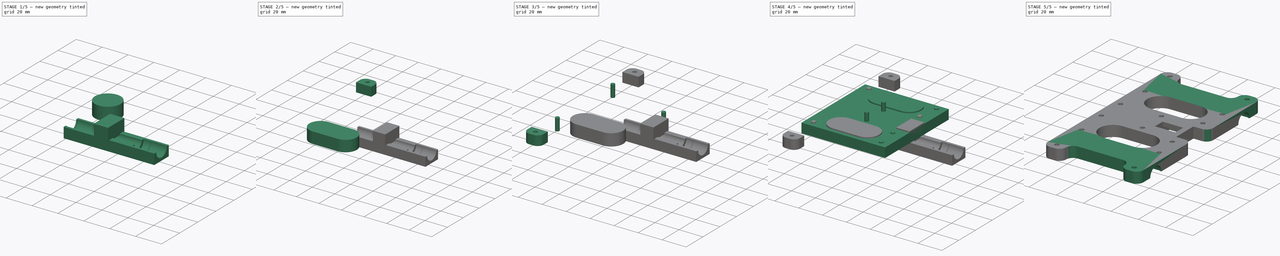
[diagram: build sequence overview — one tinted view per stage of 5, left to right]
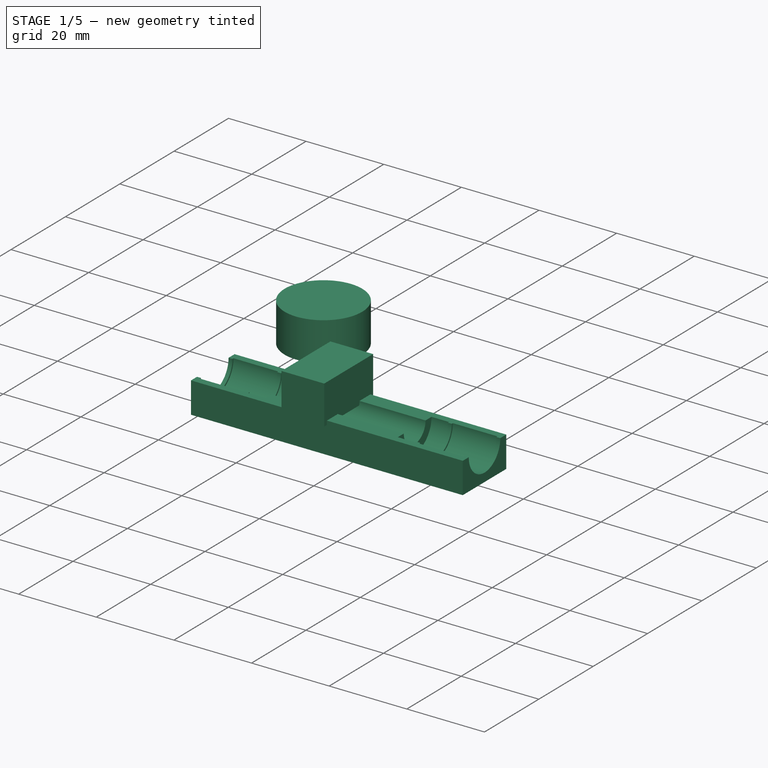
[diagram: stage 1 of 5 — iso view after this stage's code; geometry added in this stage tinted green]
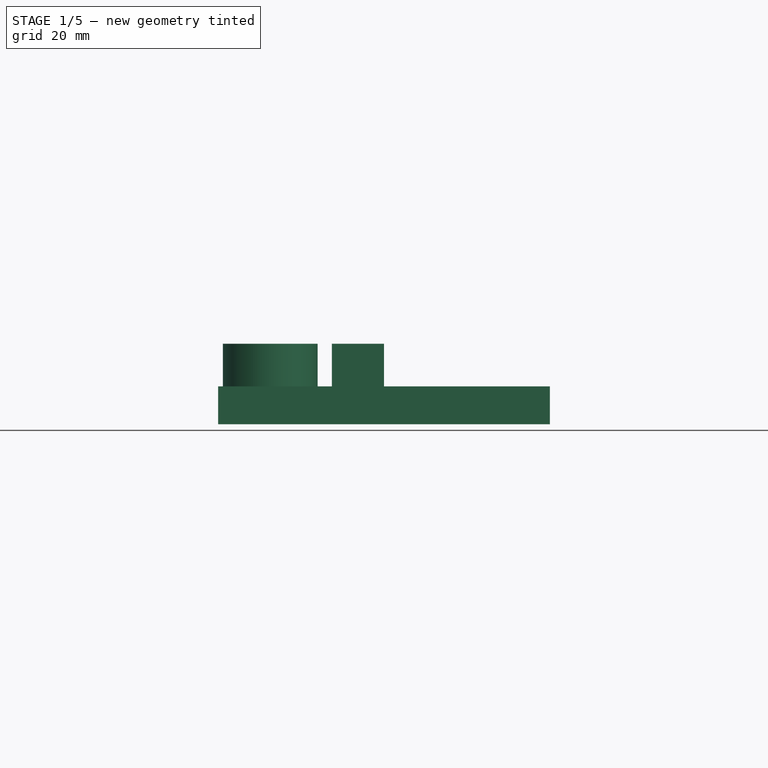
[diagram: stage 1 of 5 — front view after this stage's code; geometry added in this stage tinted green]
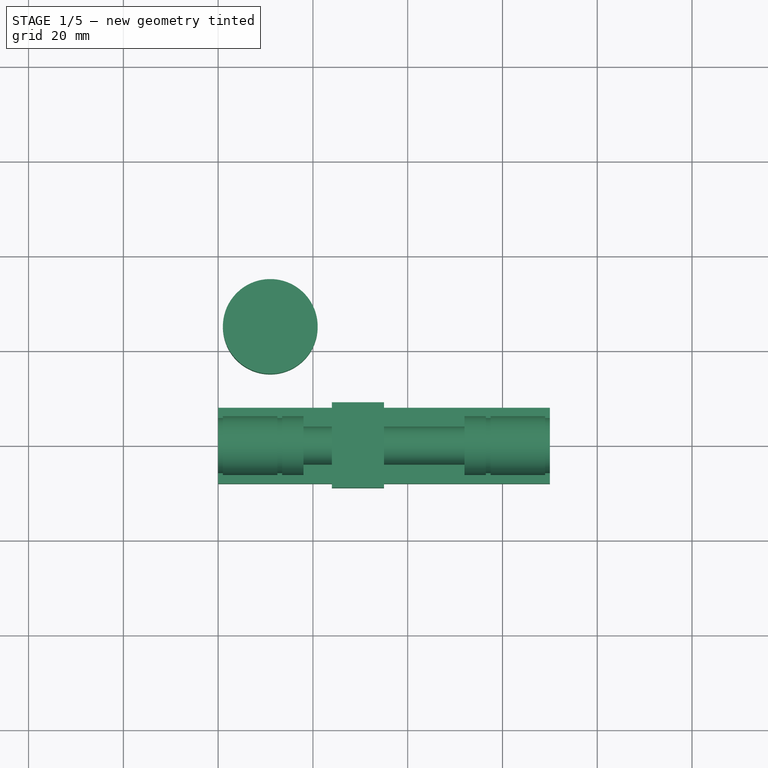
[diagram: stage 1 of 5 — top view after this stage's code; geometry added in this stage tinted green]
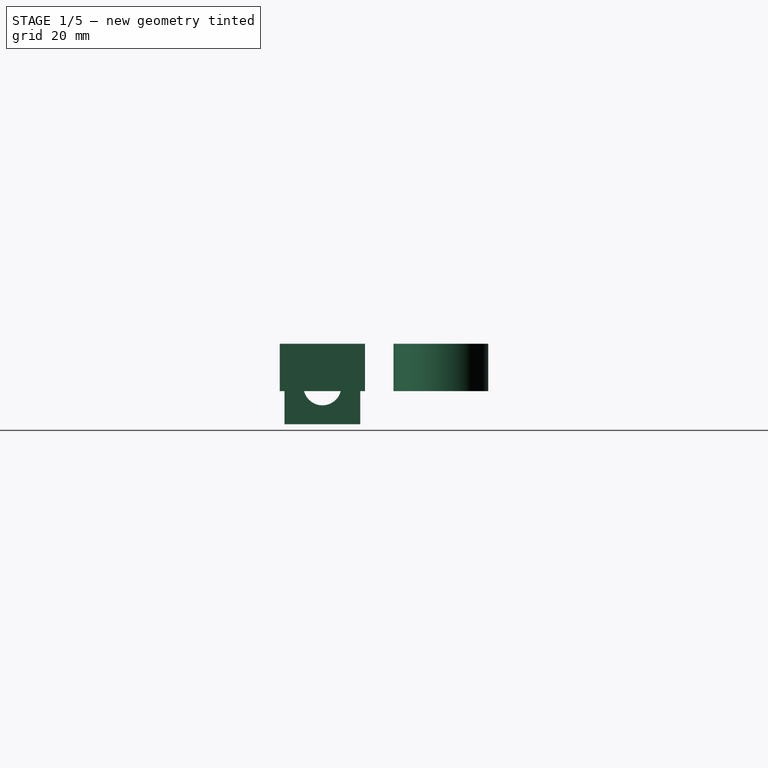
[diagram: stage 1 of 5 — right view after this stage's code; geometry added in this stage tinted green]
FCSTD DOCUMENT  (FreeCAD 0.18R14090 (Git))
Label: BedClamping1_Alt2
License: All rights reserved
LicenseURL: http://en.wikipedia.org/wiki/All_rights_reserved
objects: Part::Mirroring×12, Sketcher::SketchObject×9, PartDesign::Pad×7, Part::Box×7, Part::Cylinder×6, PartDesign::Plane×4, Part::MultiFuse×3, PartDesign::Pocket×2, PartDesign::Body×2, Part::Cut×2, Part::Fillet×2, App::Part×1, Part::FeaturePython×1
note: 66 computed .brp shape members not serialized (recipe doc carries the construction recipe); baked Part::Feature solids carry a one-line shape summary decoded from their .brp

FEATURE [PartDesign::Plane] DatumPlane  label="ClipNotch2Plane"
  AttachmentOffset = pos=(0,0,13.5) rot=(0,0,1;0rad)
  MapMode = 5
  Placement = pos=(13.5,-2e-12,2e-12) rot=(0.57735,0.57735,0.57735;2.0944rad)
  Support = -> [YZ_Plane002]
FEATURE [PartDesign::Plane] DatumPlane001  label="ClipNotch3Plane"
  AttachmentOffset = pos=(0,0,56.5) rot=(0,0,1;0rad)
  MapMode = 5
  Placement = pos=(56.5,-6e-12,6e-12) rot=(0.57735,0.57735,0.57735;2.0944rad)
  Support = -> [YZ_Plane002]
FEATURE [PartDesign::Plane] DatumPlane002  label="ClipNotch4Plane"
  AttachmentOffset = pos=(0,0,70) rot=(0,0,1;0rad)
  MapMode = 5
  Placement = pos=(70,-8e-12,8e-12) rot=(0.57735,0.57735,0.57735;2.0944rad)
  Support = -> [YZ_Plane002]
FEATURE [Sketcher::SketchObject] Sketch002  label="ClipSketch"
  MapMode = 5
  Placement = pos=(0,0,0) rot=(0.57735,0.57735,0.57735;2.0944rad)
  Support = -> [YZ_Plane002]
  sketch-geometry (6):
    g0: LineSegment StartX=-8 StartY=0 StartZ=0 EndX=-8 EndY=-8 EndZ=0
    g1: LineSegment StartX=8 StartY=0 StartZ=0 EndX=8 EndY=-8 EndZ=0
    g2: LineSegment StartX=-8 StartY=-8 StartZ=0 EndX=8 EndY=-8 EndZ=0
    g3: ArcOfCircle CenterX=0 CenterY=0 CenterZ=0 NormalX=0 NormalY=0 NormalZ=1 AngleXU=0 Radius=6.2 StartAngle=3.14159 EndAngle=6.28319
    g4: LineSegment StartX=-8 StartY=0 StartZ=0 EndX=-6.2 EndY=0 EndZ=0
    g5: LineSegment StartX=6.2 StartY=0 StartZ=0 EndX=8 EndY=0 EndZ=0
  constraints (17):
    c: Symmetric(g0,g1,g-2)
    c: PointOnObject(g0,g-1)
    c: Coincident(g2,g0)
    c: Coincident(g2,g1)
    c: Distance(g1) = 8
    c: PointOnObject(g3,g-1)
    c: PointOnObject(g3,g-1)
    c: Radius(g3) = 6.2
    c: Coincident(g3,g-1)
    c: Distance(g2) = 16
    c: Horizontal(g2)
    c: Vertical(g0)
    c: Coincident(g4,g0)
    c: Coincident(g4,g3)
    c: Coincident(g5,g3)
    c: Coincident(g5,g1)
    c: Vertical(g1)
FEATURE [PartDesign::Pad] Pad009  label="ClipPad"
  Length = 70
  Length2 = 100
  Placement = pos=(0,0,0) rot=(0.57735,0.57735,0.57735;2.0944rad)
  Profile = -> Sketch002
  Type = 0
FEATURE [Sketcher::SketchObject] Sketch001  label="ClipNotch1Sketch"
  ExternalGeometry = -> [Sketch002]
  MapMode = 5
  Placement = pos=(0,0,0) rot=(0.57735,0.57735,0.57735;2.0944rad)
  Support = -> [YZ_Plane002]
  sketch-geometry (4):
    g0: ArcOfCircle CenterX=0 CenterY=0 CenterZ=0 NormalX=0 NormalY=0 NormalZ=1 AngleXU=0 Radius=6.2 StartAngle=3.14159 EndAngle=6.28319
    g1: ArcOfCircle CenterX=0 CenterY=0 CenterZ=0 NormalX=0 NormalY=0 NormalZ=1 AngleXU=0 Radius=5.8 StartAngle=3.14159 EndAngle=6.28319
    g2: LineSegment StartX=-6.2 StartY=0 StartZ=0 EndX=-5.8 EndY=0 EndZ=0
    g3: LineSegment StartX=5.8 StartY=0 StartZ=0 EndX=6.2 EndY=0 EndZ=0
  constraints (11):
    c: Coincident(g0,g-1)
    c: Coincident(g0,g-3)
    c: PointOnObject(g0,g-1)
    c: Coincident(g1,g0)
    c: Coincident(g2,g0)
    c: Coincident(g2,g1)
    c: Horizontal(g2)
    c: Coincident(g3,g1)
    c: Coincident(g3,g0)
    c: Horizontal(g3)
    c: Radius(g1) = 5.8
FEATURE [PartDesign::Pad] Pad001  label="ClipNotch1Pad"
  BaseFeature = -> Pad009
  Length = 1
  Length2 = 100
  Placement = pos=(0,0,0) rot=(0.57735,0.57735,0.57735;2.0944rad)
  Profile = -> Sketch001
  Type = 0
FEATURE [Sketcher::SketchObject] Sketch004  label="ClipNotch3Sketch"
  ExternalGeometry = -> [Sketch001]
  MapMode = 5
  Placement = pos=(56.5,-6e-12,6e-12) rot=(0.57735,0.57735,0.57735;2.0944rad)
  Support = -> [DatumPlane001]
  sketch-geometry (4):
    g0: ArcOfCircle CenterX=0 CenterY=0 CenterZ=0 NormalX=0 NormalY=0 NormalZ=1 AngleXU=0 Radius=5.8 StartAngle=3.14159 EndAngle=6.28319
    g1: ArcOfCircle CenterX=0 CenterY=0 CenterZ=0 NormalX=0 NormalY=0 NormalZ=1 AngleXU=0 Radius=6.2 StartAngle=3.14159 EndAngle=6.28319
    g2: LineSegment StartX=-6.2 StartY=0 StartZ=0 EndX=-5.8 EndY=-1e-12 EndZ=0
    g3: LineSegment StartX=5.8 StartY=2e-12 StartZ=0 EndX=6.2 EndY=0 EndZ=0
  constraints (10):
    c: Coincident(g0,g-1)
    c: Coincident(g0,g-3)
    c: Coincident(g0,g-3)
    c: Coincident(g1,g0)
    c: Coincident(g1,g-4)
    c: Coincident(g1,g-4)
    c: Coincident(g2,g1)
    c: Coincident(g2,g0)
    c: Coincident(g3,g0)
    c: Coincident(g3,g1)
FEATURE [Sketcher::SketchObject] Sketch003  label="ClipNotch2Sketch"
  ExternalGeometry = -> [Sketch001]
  MapMode = 5
  Placement = pos=(13.5,-2e-12,2e-12) rot=(0.57735,0.57735,0.57735;2.0944rad)
  Support = -> [DatumPlane]
  sketch-geometry (4):
    g0: ArcOfCircle CenterX=0 CenterY=0 CenterZ=0 NormalX=0 NormalY=0 NormalZ=1 AngleXU=0 Radius=6.2 StartAngle=3.14159 EndAngle=6.28319
    g1: ArcOfCircle CenterX=0 CenterY=0 CenterZ=0 NormalX=0 NormalY=0 NormalZ=1 AngleXU=0 Radius=5.8 StartAngle=3.14159 EndAngle=6.28319
    g2: LineSegment StartX=-6.2 StartY=-1e-12 StartZ=0 EndX=-5.8 EndY=0 EndZ=0
    g3: LineSegment StartX=5.8 StartY=0 StartZ=0 EndX=6.2 EndY=0 EndZ=0
  constraints (10):
    c: Coincident(g0,g-1)
    c: Coincident(g0,g-3)
    c: Coincident(g0,g-3)
    c: Coincident(g1,g0)
    c: Coincident(g1,g-4)
    c: Coincident(g1,g-4)
    c: Coincident(g2,g0)
    c: Coincident(g2,g1)
    c: Coincident(g3,g1)
    c: Coincident(g3,g0)
FEATURE [PartDesign::Pad] Pad010  label="ClipNotch2Pad"
  BaseFeature = -> Pad001
  Length = 1
  Length2 = 100
  Placement = pos=(0,0,0) rot=(0.57735,0.57735,0.57735;2.0944rad)
  Profile = -> Sketch003
  Reversed = true
  Type = 0
FEATURE [PartDesign::Pad] Pad011  label="ClipNotch3Pad"
  BaseFeature = -> Pad010
  Length = 1
  Length2 = 100
  Placement = pos=(0,0,0) rot=(0.57735,0.57735,0.57735;2.0944rad)
  Profile = -> Sketch004
  Type = 0
FEATURE [Sketcher::SketchObject] Sketch005  label="ClipNotch4Sketch"
  ExternalGeometry = -> [Sketch001]
  MapMode = 5
  Placement = pos=(70,-8e-12,8e-12) rot=(0.57735,0.57735,0.57735;2.0944rad)
  Support = -> [DatumPlane002]
  sketch-geometry (4):
    g0: ArcOfCircle CenterX=0 CenterY=0 CenterZ=0 NormalX=0 NormalY=0 NormalZ=1 AngleXU=0 Radius=5.8 StartAngle=3.14159 EndAngle=6.28319
    g1: ArcOfCircle CenterX=0 CenterY=0 CenterZ=0 NormalX=0 NormalY=0 NormalZ=1 AngleXU=0 Radius=6.2 StartAngle=3.14159 EndAngle=6.28319
    g2: LineSegment StartX=-6.2 StartY=0 StartZ=0 EndX=-5.8 EndY=-1e-12 EndZ=0
    g3: LineSegment StartX=5.8 StartY=2e-12 StartZ=0 EndX=6.2 EndY=3e-12 EndZ=0
  constraints (10):
    c: Coincident(g0,g-1)
    c: Coincident(g0,g-3)
    c: Coincident(g0,g-3)
    c: Coincident(g1,g0)
    c: Coincident(g1,g-4)
    c: Coincident(g1,g-4)
    c: Coincident(g2,g1)
    c: Coincident(g2,g0)
    c: Coincident(g3,g0)
    c: Coincident(g3,g1)
FEATURE [PartDesign::Pad] Pad012  label="ClipNotch4Pad"
  BaseFeature = -> Pad011
  Length = 1
  Length2 = 100
  Placement = pos=(0,0,0) rot=(0.57735,0.57735,0.57735;2.0944rad)
  Profile = -> Sketch005
  Reversed = true
  Type = 0
FEATURE [Part::Cylinder] Cylinder005  label="StructuralCutCilinder"
  Angle = 360
  AttacherType = Attacher::AttachEngine3D
  Height = 10
  Placement = pos=(11,25,-1) rot=(0,0,1;0rad)
  Radius = 10
FEATURE [PartDesign::Plane] DatumPlane003  label="ClipStiffenerPlane"
  AttachmentOffset = pos=(0,0,18) rot=(0,0,1;0rad)
  MapMode = 5
  Placement = pos=(18,-2e-12,2e-12) rot=(0.57735,0.57735,0.57735;2.0944rad)
  Support = -> [YZ_Plane002]
FEATURE [Sketcher::SketchObject] Sketch008  label="ClipStiffenerSketch"
  ExternalGeometry = -> [Sketch002]
  MapMode = 5
  Placement = pos=(18,-2e-12,2e-12) rot=(0.57735,0.57735,0.57735;2.0944rad)
  Support = -> [DatumPlane003]
  sketch-geometry (4):
    g0: ArcOfCircle CenterX=0 CenterY=0 CenterZ=0 NormalX=0 NormalY=0 NormalZ=1 AngleXU=0 Radius=6.2 StartAngle=3.14159 EndAngle=6.28319
    g1: ArcOfCircle CenterX=0 CenterY=0 CenterZ=0 NormalX=0 NormalY=0 NormalZ=1 AngleXU=0 Radius=4 StartAngle=3.14159 EndAngle=6.28319
    g2: LineSegment StartX=-4 StartY=0 StartZ=0 EndX=-6.2 EndY=0 EndZ=0
    g3: LineSegment StartX=4 StartY=0 StartZ=0 EndX=6.2 EndY=0 EndZ=0
  constraints (11):
    c: Coincident(g0,g-1)
    c: Coincident(g0,g-3)
    c: Coincident(g0,g-3)
    c: PointOnObject(g1,g-1)
    c: PointOnObject(g1,g-1)
    c: Radius(g1) = 4
    c: Coincident(g2,g1)
    c: Coincident(g2,g0)
    c: Coincident(g3,g1)
    c: Coincident(g3,g0)
    c: Coincident(g1,g0)
FEATURE [PartDesign::Pad] Pad013  label="ClipStiffenerPad"
  BaseFeature = -> Pad012
  Length = 34
  Length2 = 100
  Placement = pos=(0,0,0) rot=(0.57735,0.57735,0.57735;2.0944rad)
  Profile = -> Sketch008
  Type = 0
FEATURE [Part::Box] Box009  label="FrontCutCube"
  AttacherType = Attacher::AttachEngine3D
  Height = 10
  Length = 11
  Placement = pos=(24,-9,-1) rot=(0,0,1;0rad)
  Width = 18
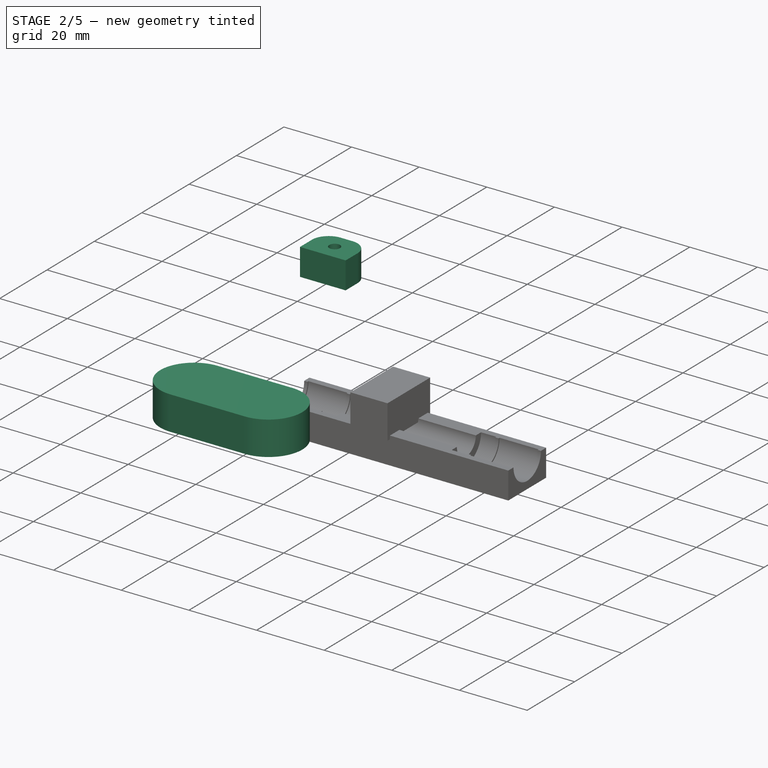
[diagram: stage 2 of 5 — iso view after this stage's code; geometry added in this stage tinted green]
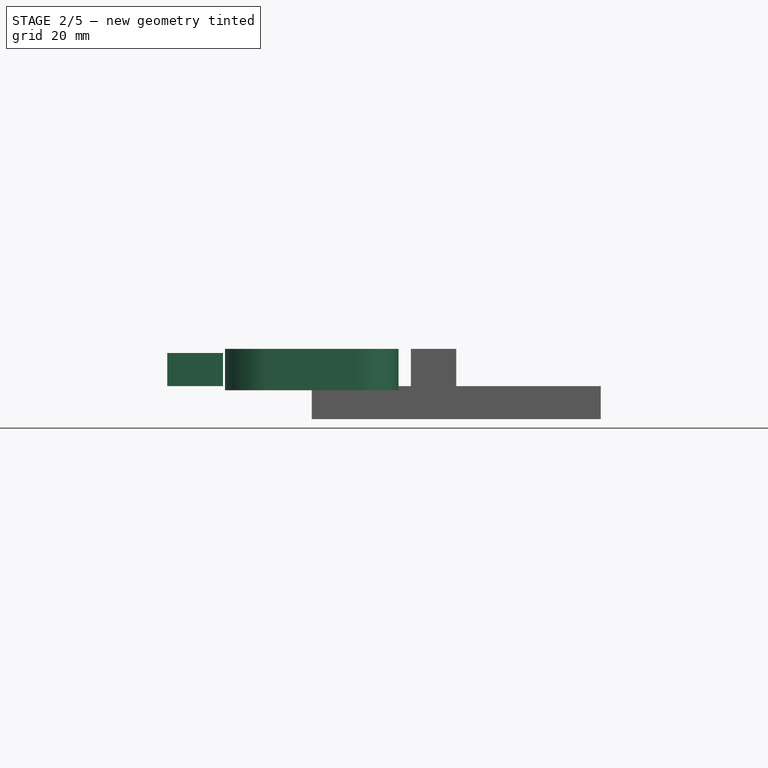
[diagram: stage 2 of 5 — front view after this stage's code; geometry added in this stage tinted green]
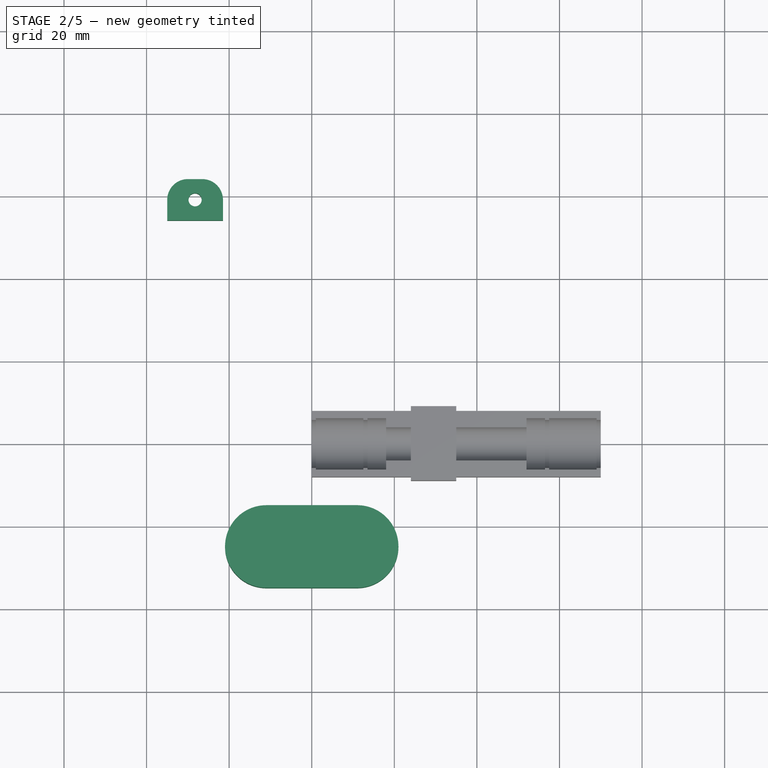
[diagram: stage 2 of 5 — top view after this stage's code; geometry added in this stage tinted green]
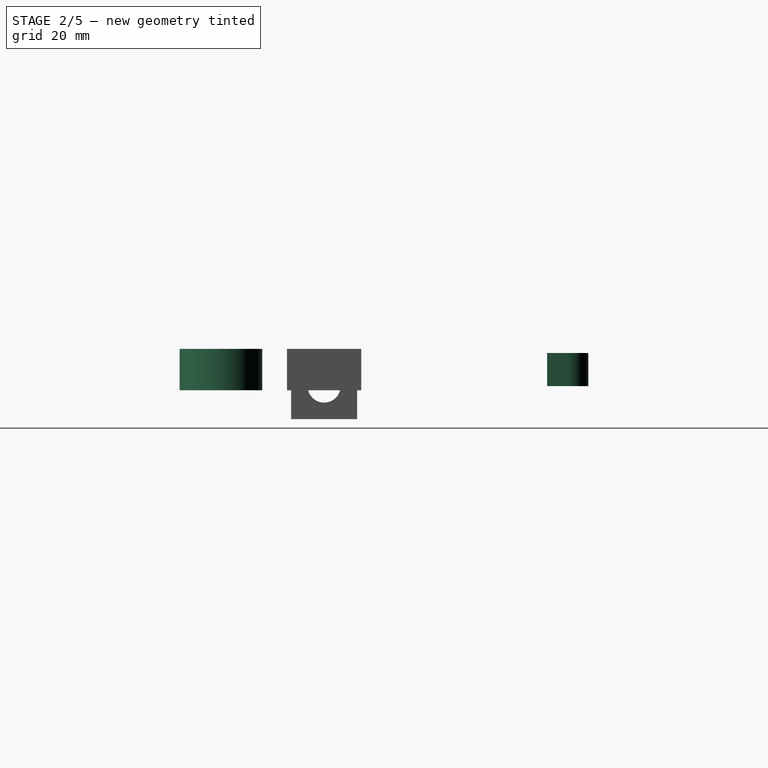
[diagram: stage 2 of 5 — right view after this stage's code; geometry added in this stage tinted green]
FEATURE [Part::Box] Box004  label="SideClipCube"
  AttacherType = Attacher::AttachEngine3D
  Height = 8
  Length = 13.5
  Placement = pos=(21.5,54,0) rot=(0,0,1;0rad)
  Width = 10
FEATURE [Part::Cylinder] Cylinder004  label="SideClipScrewCilinder"
  Angle = 360
  AttacherType = Attacher::AttachEngine3D
  Height = 10
  Placement = pos=(28.25,59,-1) rot=(0,0,1;0rad)
  Radius = 1.6
FEATURE [Part::Cut] Cut001  label="SideClipCut"
  Base = -> Box004
  Tool = -> Cylinder004
FEATURE [Part::Fillet] Fillet  label="SideClipFillet"
  Base = -> Cut001
  Edges = 2 edges r=5: [Edge3,Edge12]
FEATURE [Part::Mirroring] Part__Mirroring009  label="SideClipFillet_Mirror1"
  Base = (0,0,0)
  Normal = (1,0,0)
  Source = -> Fillet
FEATURE [Part::Box] Box005  label="StructuralCutCube"
  AttacherType = Attacher::AttachEngine3D
  Height = 10
  Length = 22
  Placement = pos=(-11,15,-1) rot=(0,0,1;0rad)
  Width = 20
FEATURE [Part::Mirroring] Part__Mirroring010  label="StructuralCutCilinder_Mirror"
  Base = (0,0,0)
  Normal = (1,0,0)
  Source = -> Cylinder005
FEATURE [Part::MultiFuse] Fusion002  label="StructuralCutHelperFusion"
  Shapes = -> [Cylinder005,Part__Mirroring010,Box005]
FEATURE [Part::Mirroring] Part__Mirroring011  label="StructuralCutHelperFusion_Mirror"
  Base = (0,0,0)
  Normal = (0,1,0)
  Source = -> Fusion002
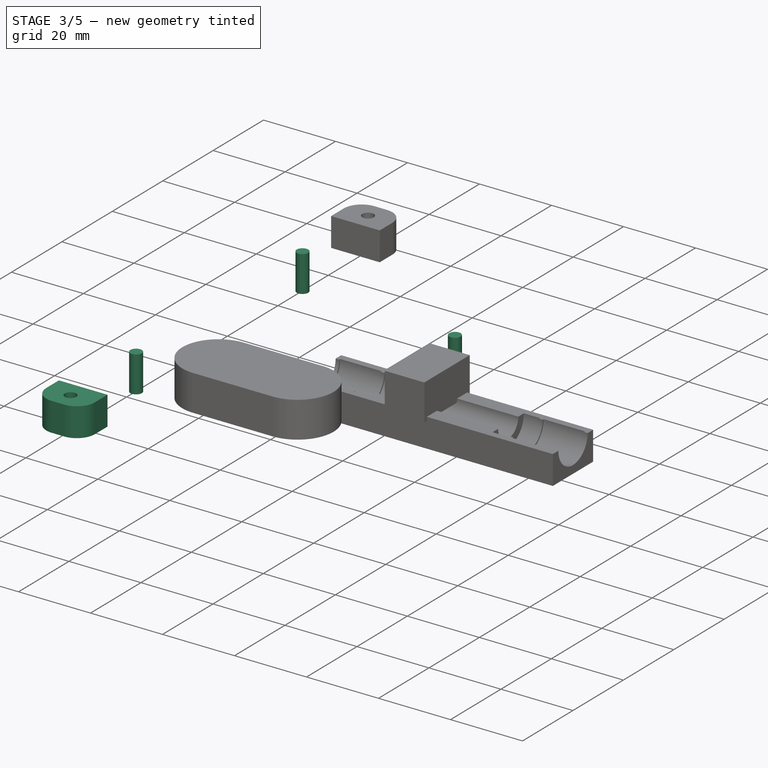
[diagram: stage 3 of 5 — iso view after this stage's code; geometry added in this stage tinted green]
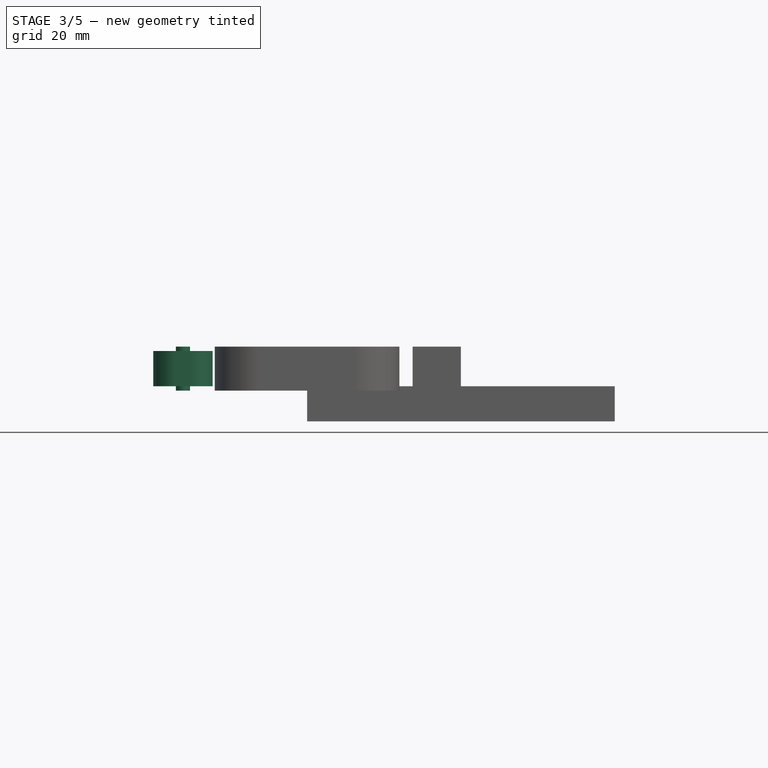
[diagram: stage 3 of 5 — front view after this stage's code; geometry added in this stage tinted green]
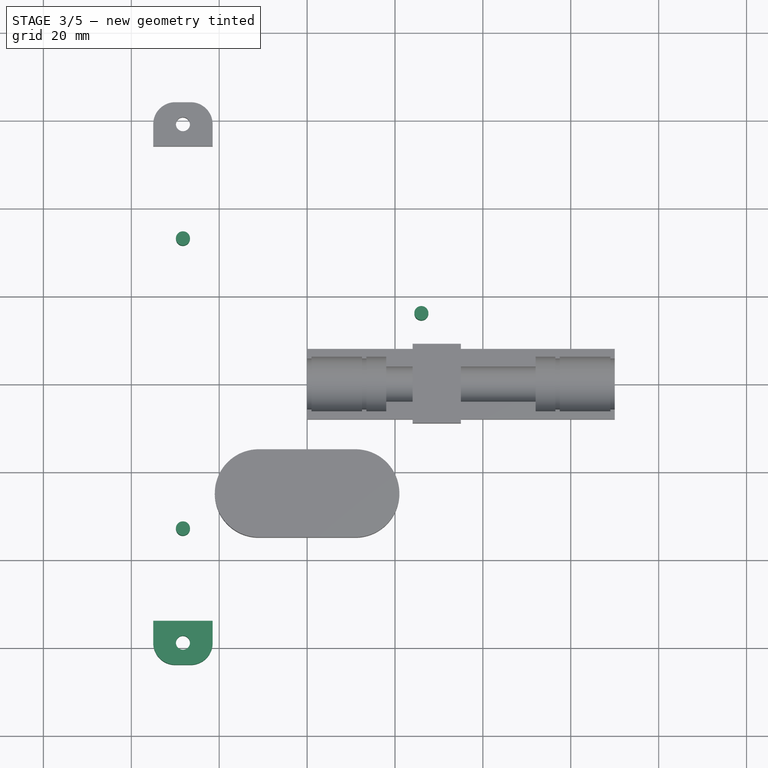
[diagram: stage 3 of 5 — top view after this stage's code; geometry added in this stage tinted green]
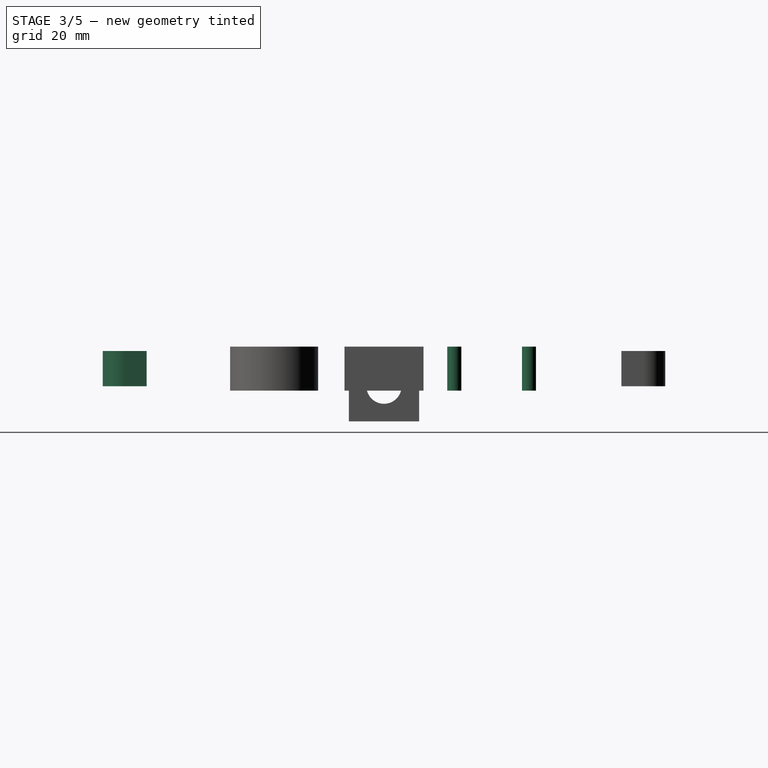
[diagram: stage 3 of 5 — right view after this stage's code; geometry added in this stage tinted green]
FEATURE [Part::Cylinder] Cylinder002  label="ScrewHoleCilinder2"
  Angle = 360
  AttacherType = Attacher::AttachEngine3D
  Height = 10
  Placement = pos=(26,-16,-1) rot=(0,0,1;0rad)
  Radius = 1.6
FEATURE [Part::Mirroring] Part__Mirroring003  label="ScrewHoleCilinder2_Mirror"
  Base = (0,0,0)
  Normal = (0,1,0)
  Source = -> Cylinder002
FEATURE [Part::Cylinder] Cylinder003  label="ScrewHoleCilinder3"
  Angle = 360
  AttacherType = Attacher::AttachEngine3D
  Height = 10
  Placement = pos=(28.25,33,-1) rot=(0,0,1;0rad)
  Radius = 1.6
FEATURE [Part::Mirroring] Part__Mirroring004  label="ScrewHoleCilinder3_Mirror1"
  Base = (0,0,0)
  Normal = (0,1,0)
  Source = -> Cylinder003
FEATURE [Part::Mirroring] Part__Mirroring005  label="ScrewHoleCilinder3_Mirror2"
  Base = (7.15256e-07,-33,4)
  Normal = (1,0,-1.19209e-07)
  Source = -> Part__Mirroring004
FEATURE [Part::Mirroring] Part__Mirroring006  label="ScrewHoleCilinder3_Mirror3"
  Base = (7.15256e-07,33,4)
  Normal = (1,0,-1.19209e-07)
  Source = -> Cylinder003
FEATURE [Part::Mirroring] Part__Mirroring007  label="SideClipFillet_Mirror3"
  Base = (0,0,0)
  Normal = (0,1,0)
  Source = -> Fillet
FEATURE [Part::Mirroring] Part__Mirroring008  label="SideClipFillet_Mirror2"
  Base = (0,0,0)
  Normal = (1,0,0)
  Source = -> Part__Mirroring007
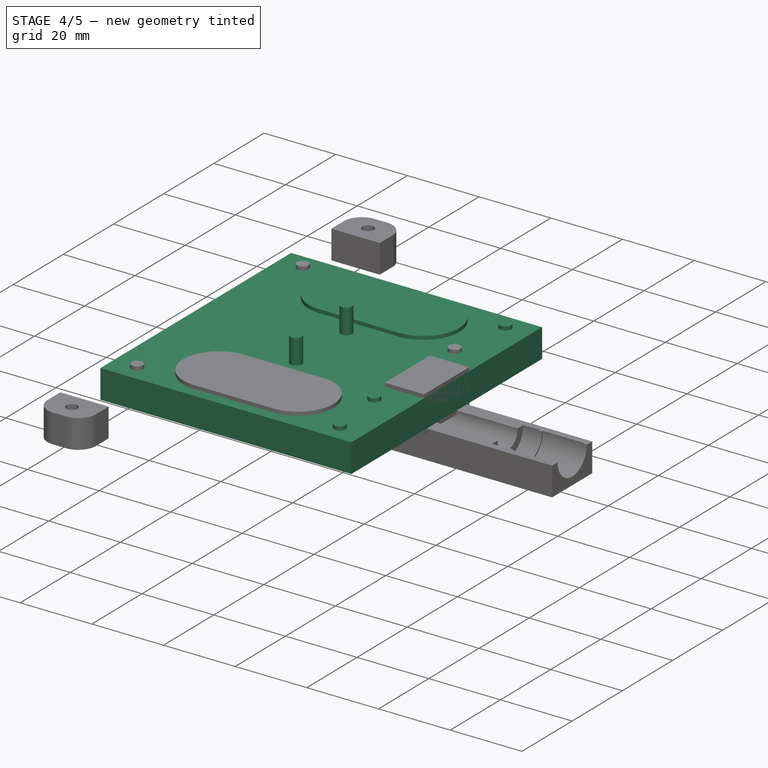
[diagram: stage 4 of 5 — iso view after this stage's code; geometry added in this stage tinted green]
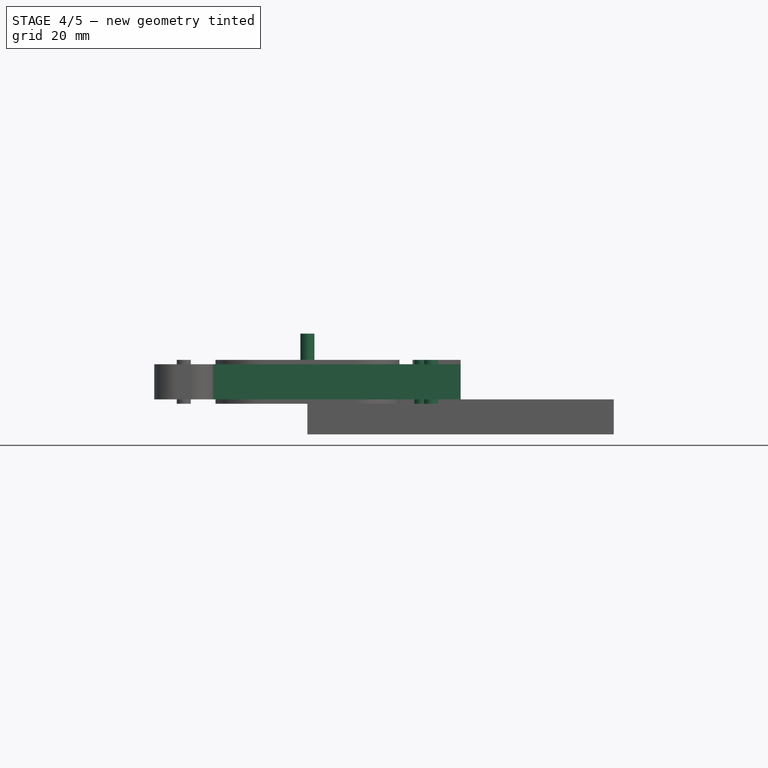
[diagram: stage 4 of 5 — front view after this stage's code; geometry added in this stage tinted green]
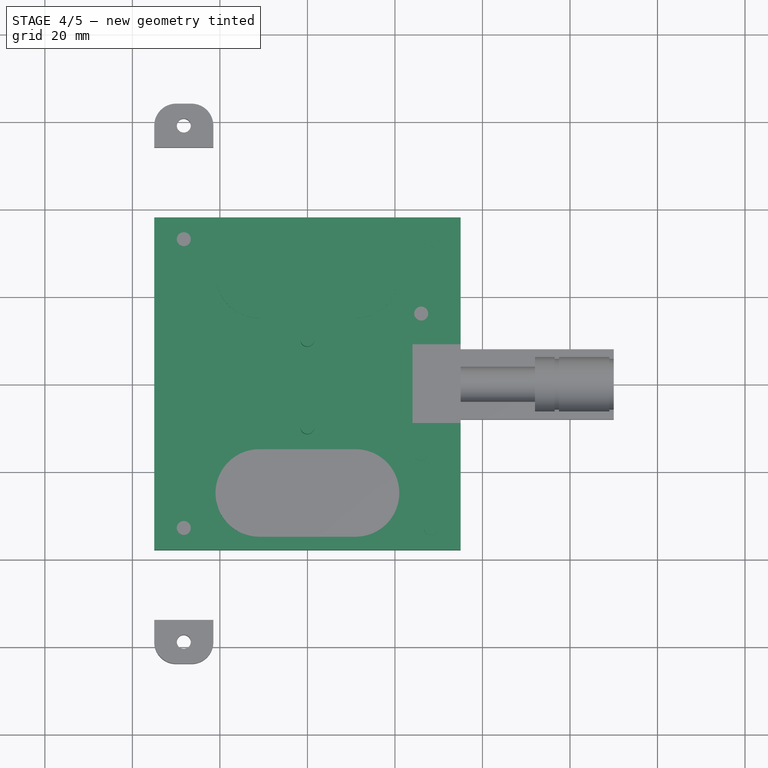
[diagram: stage 4 of 5 — top view after this stage's code; geometry added in this stage tinted green]
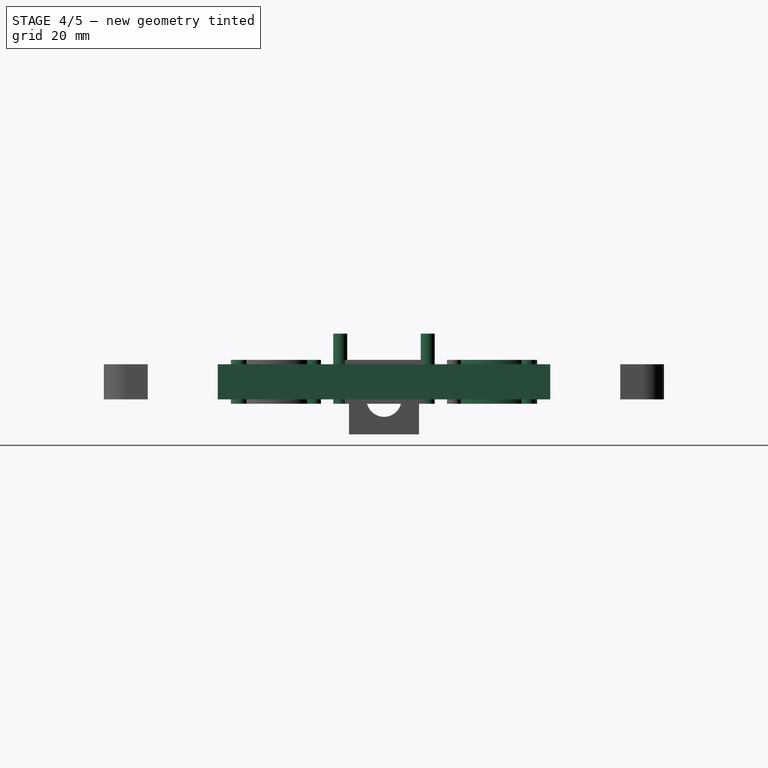
[diagram: stage 4 of 5 — right view after this stage's code; geometry added in this stage tinted green]
FEATURE [Part::Box] Box  label="BedBaseCube"
  AttacherType = Attacher::AttachEngine3D
  Height = 8
  Length = 70
  Placement = pos=(-35,-38,0) rot=(0,0,1;0rad)
  Width = 76
FEATURE [Part::Box] Box001  label="BeltClipCube"
  AttacherType = Attacher::AttachEngine3D
  Height = 2
  Length = 70
  Placement = pos=(-35,-3.5,0) rot=(0,0,1;0rad)
  Width = 7
FEATURE [Part::Box] Box002  label="BeltTensionerRailCube1"
  AttacherType = Attacher::AttachEngine3D
  Height = 5
  Length = 15
  Placement = pos=(5,-11,0) rot=(0,0,1;0rad)
  Width = 22
FEATURE [Part::Box] Box003  label="BeltTensionerRailCube2"
  AttacherType = Attacher::AttachEngine3D
  Height = 3
  Length = 15
  Placement = pos=(5,-4,5) rot=(0,0,1;0rad)
  Width = 8
FEATURE [PartDesign::Body] Body002  label="BedTensionerBody"
  Group = -> [Sketch,Pad,Sketch006,Pocket,Sketch007,Pocket001]
  Origin = -> Origin003
  Placement = pos=(0,0,8) rot=(0,0,1;0rad)
  Tip = -> Pocket001
FEATURE [Part::Cylinder] Cylinder  label="BeltTensionerClipCilinder"
  Angle = 360
  AttacherType = Attacher::AttachEngine3D
  Height = 16
  Placement = pos=(0,10,-1) rot=(0,0,1;0rad)
  Radius = 1.6
FEATURE [Part::Mirroring] Part__Mirroring001  label="BeltTensionerClipCilinder_Mirror"
  Base = (0,0,0)
  Normal = (0,1,0)
  Source = -> Cylinder
FEATURE [Part::Cylinder] Cylinder001  label="ScrewHoleCilinder1"
  Angle = 360
  AttacherType = Attacher::AttachEngine3D
  Height = 8
  Placement = pos=(-30,-10,0) rot=(0,0,1;0rad)
  Radius = 1.6
FEATURE [Part::Mirroring] Part__Mirroring002  label="ScrewHoleCilinder_Mirror"
  Base = (0,0,0)
  Normal = (0,1,0)
  Source = -> Cylinder001
FEATURE [Part::MultiFuse] Fusion  label="BeltTensionerCutObjectsFusion"
  Shapes = -> [Box001,Box002,Box003,Cylinder,Part__Mirroring001,Cylinder001,Part__Mirroring002,Cylinder002,Part__Mirroring003,Cylinder003,Part__Mirroring004,Part__Mirroring005,Part__Mirroring006,Fusion002,Part__Mirroring011,Box009]
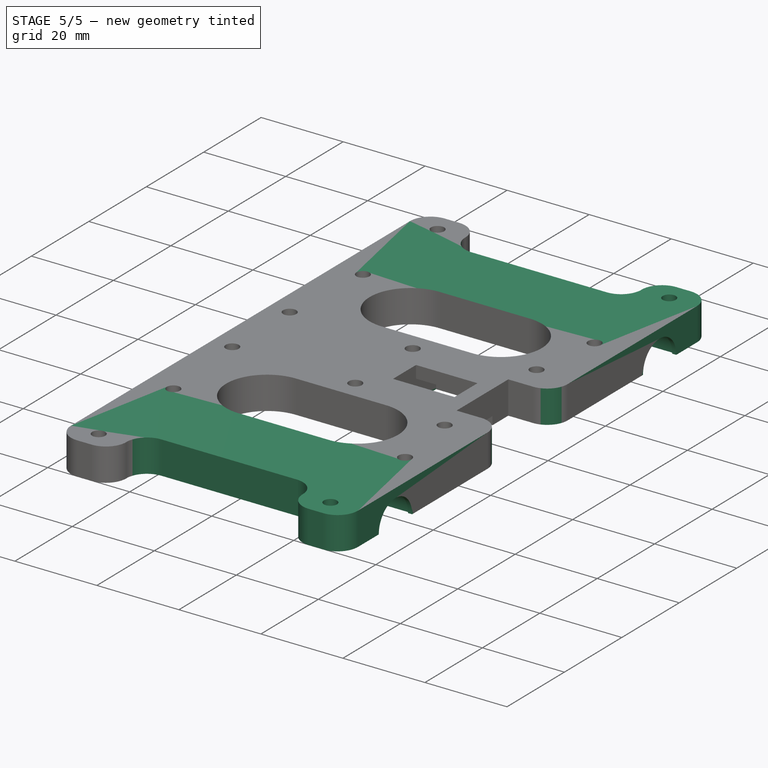
[diagram: stage 5 of 5 — iso view after this stage's code; geometry added in this stage tinted green]
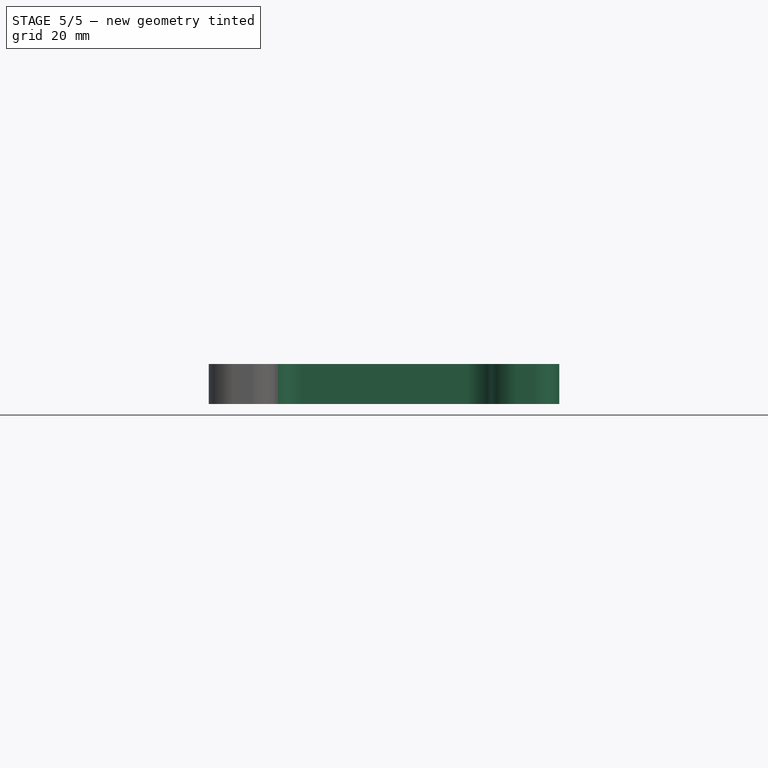
[diagram: stage 5 of 5 — front view after this stage's code; geometry added in this stage tinted green]
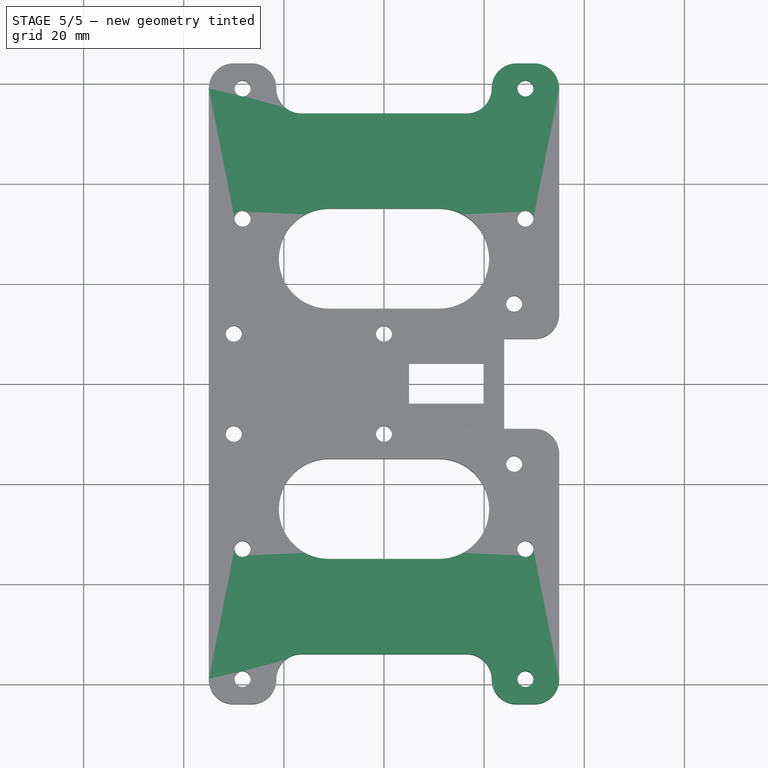
[diagram: stage 5 of 5 — top view after this stage's code; geometry added in this stage tinted green]
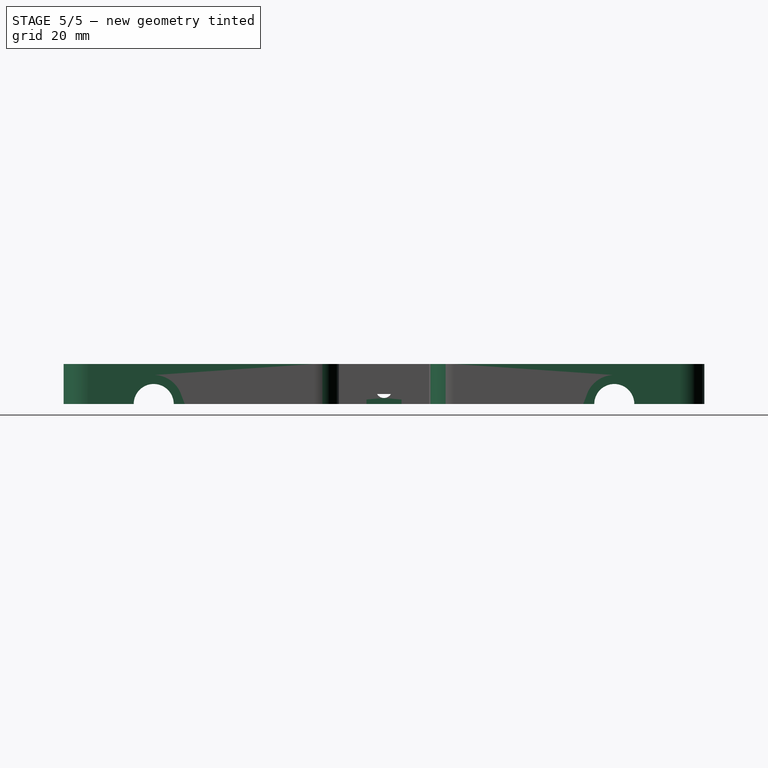
[diagram: stage 5 of 5 — right view after this stage's code; geometry added in this stage tinted green]
FEATURE [Sketcher::SketchObject] Sketch  label="BT_BaseSketch"
  MapMode = 5
  Placement = pos=(0,0,0) rot=(0.57735,0.57735,0.57735;2.0944rad)
  Support = -> [YZ_Plane003]
  sketch-geometry (5):
    g0: LineSegment StartX=-14 StartY=0 StartZ=0 EndX=14 EndY=0 EndZ=0
    g1: LineSegment StartX=14 StartY=0 StartZ=0 EndX=14 EndY=6 EndZ=0
    g2: LineSegment StartX=14 StartY=6 StartZ=0 EndX=-14 EndY=6 EndZ=0
    g3: LineSegment StartX=-14 StartY=6 StartZ=0 EndX=-14 EndY=0 EndZ=0
    g4: Circle CenterX=0 CenterY=2.8 CenterZ=0 NormalX=0 NormalY=0 NormalZ=1 AngleXU=0 Radius=1.6
  constraints (14):
    c: Coincident(g0,g1)
    c: Coincident(g1,g2)
    c: Coincident(g2,g3)
    c: Coincident(g3,g0)
    c: Horizontal(g2)
    c: Vertical(g1)
    c: Vertical(g3)
    c: PointOnObject(g0,g-1)
    c: Symmetric(g0,g0,g-2)
    c: Distance(g2) = 28
    c: Distance(g1) = 6
    c: PointOnObject(g4,g-2)
    c: Distance(g4,g0) = 2.8
    c: Radius(g4) = 1.6
FEATURE [PartDesign::Pad] Pad  label="BT_BasePad"
  Length = 10
  Length2 = 100
  Midplane = true
  Placement = pos=(0,0,0) rot=(0.57735,0.57735,0.57735;2.0944rad)
  Profile = -> Sketch
  Type = 0
FEATURE [Sketcher::SketchObject] Sketch006  label="BT_NutSketch"
  ExternalGeometry = -> [Sketch]
  MapMode = 5
  Placement = pos=(0,0,0) rot=(0.57735,0.57735,0.57735;2.0944rad)
  Support = -> [YZ_Plane003]
  sketch-geometry (7):
    g0: LineSegment StartX=1.61658 StartY=0 StartZ=0 EndX=3.23316 EndY=2.8 EndZ=0
    g1: LineSegment StartX=3.23316 StartY=2.8 StartZ=0 EndX=1.61658 EndY=5.6 EndZ=0
    g2: LineSegment StartX=1.61658 StartY=5.6 StartZ=0 EndX=-1.61658 EndY=5.6 EndZ=0
    g3: LineSegment StartX=-1.61658 StartY=5.6 StartZ=0 EndX=-3.23316 EndY=2.8 EndZ=0
    g4: LineSegment StartX=-3.23316 StartY=2.8 StartZ=0 EndX=-1.61658 EndY=0 EndZ=0
    g5: LineSegment StartX=-1.61658 StartY=0 StartZ=0 EndX=1.61658 EndY=0 EndZ=0
    g6: Circle [constr] CenterX=0 CenterY=2.8 CenterZ=0 NormalX=0 NormalY=0 NormalZ=1 AngleXU=0 Radius=3.23316
  constraints (16):
    c: Coincident(g0,g1)
    c: Coincident(g1,g2)
    c: Coincident(g2,g3)
    c: Coincident(g3,g4)
    c: Coincident(g4,g5)
    c: Coincident(g5,g0)
    c: Equal(g0, g1-g5) x5
    c: PointOnObject(g0,g6)
    c: PointOnObject(g1,g6)
    c: PointOnObject(g2,g6)
    c: PointOnObject(g3,g6)
    c: PointOnObject(g4,g6)
    c: PointOnObject(g5,g6)
    c: Coincident(g6,g-3)
    c: Horizontal(g5)
    c: Distance(g1,g0) = 5.6
FEATURE [PartDesign::Pocket] Pocket  label="BT_NutPocket"
  BaseFeature = -> Pad
  Length = 5
  Length2 = 100
  Placement = pos=(0,0,0) rot=(0.57735,0.57735,0.57735;2.0944rad)
  Profile = -> Sketch006
  Type = 1
FEATURE [Sketcher::SketchObject] Sketch007  label="BT_ScrewsSketch"
  MapMode = 5
  Support = -> [XY_Plane003]
  sketch-geometry (2):
    g0: Circle CenterX=0 CenterY=10 CenterZ=0 NormalX=0 NormalY=0 NormalZ=1 AngleXU=0 Radius=1.6
    g1: Circle CenterX=0 CenterY=-10 CenterZ=0 NormalX=0 NormalY=0 NormalZ=1 AngleXU=0 Radius=1.6
  constraints (5):
    c: PointOnObject(g0,g-2)
    c: Equal(g0,g1)
    c: Symmetric(g0,g1,g-1)
    c: Distance(g0,g1) = 20
    c: Radius(g0) = 1.6
FEATURE [PartDesign::Pocket] Pocket001  label="BT_ScrewsPocket"
  BaseFeature = -> Pocket
  Length = 5
  Length2 = 100
  Placement = pos=(0,0,0) rot=(0.57735,0.57735,0.57735;2.0944rad)
  Profile = -> Sketch007
  Reversed = true
  Type = 1
FEATURE [PartDesign::Body] Body001  label="Clip_LM6UU"
  Group = -> [Sketch002,Pad009,Sketch001,Pad001,DatumPlane,Sketch003,Pad010,DatumPlane001,Sketch004,Pad011,DatumPlane002,Sketch005,Pad012,DatumPlane003,Sketch008,Pad013]
  Origin = -> Origin002
  Placement = pos=(-35,-46,0) rot=(1,0,0;3.14159rad)
  Tip = -> Pad013
FEATURE [Part::Mirroring] Part__Mirroring  label="Clip_LM6UU_Mirror"
  Base = (0,0,0)
  Normal = (0,1,0)
  Source = -> Body001
FEATURE [Part::Cut] Cut  label="BeltTensionerServicePocketsCut"
  Base = -> Box
  Tool = -> Fusion
FEATURE [Part::MultiFuse] Fusion001  label="BedClamping_MainFusion"
  Shapes = -> [Part__Mirroring,Body001,Cut,Part__Mirroring009,Fillet,Part__Mirroring008,Part__Mirroring007]
FEATURE [Part::Fillet] Fillet001  label="BedClamping_FinalFillet"
  Base = -> Fusion001
  Edges = 6 edges r=4.99: [Edge93,Edge221,Edge232,Edge233,Edge310,Edge311]
FEATURE [App::Part] Part  label="BedClampingPart"
  Group = -> [Body001,Box,Part__Mirroring,Box001,Box002,Box003,Fusion,Cut,Cylinder,Part__Mirroring001,Cylinder001,Part__Mirroring002,Cylinder002,Part__Mirroring003,Cylinder003,Part__Mirroring004,Part__Mirroring005,Part__Mirroring006,Box004,Cylinder004,Cut001,Fillet,Part__Mirroring009,Part__Mirroring007,Part__Mirroring008,Fusion001,Cylinder005,Box005,Part__Mirroring010,Fusion002,Part__Mirroring011,Box009,+1 more]
  License = CC BY 3.0
  LicenseURL = http://creativecommons.org/licenses/by/3.0/
  Origin = -> Origin
FEATURE [Part::FeaturePython] refine  label="BedClamping_Refined"  # WARN: FeaturePython — macro-defined, semantics opaque (R4)
  Base = -> Fillet001
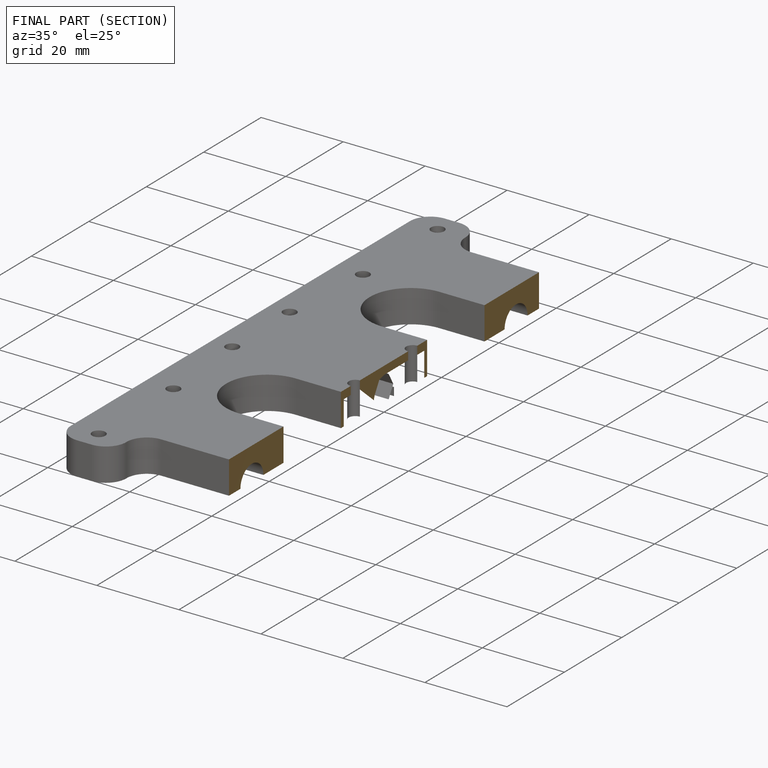
[diagram: finished part — half-section view (interior)]
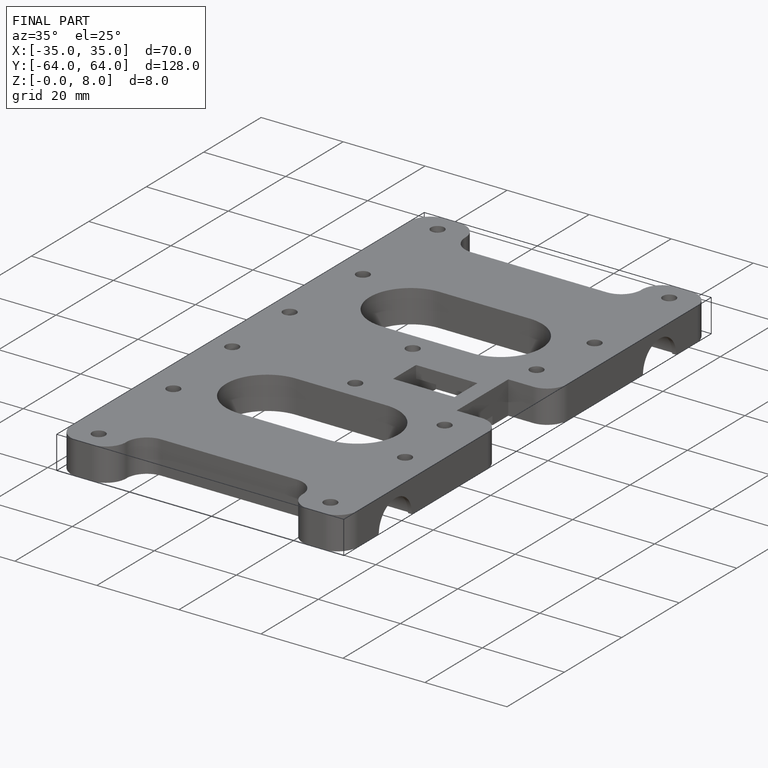
[diagram: finished part — iso view with bounding-box wireframe]
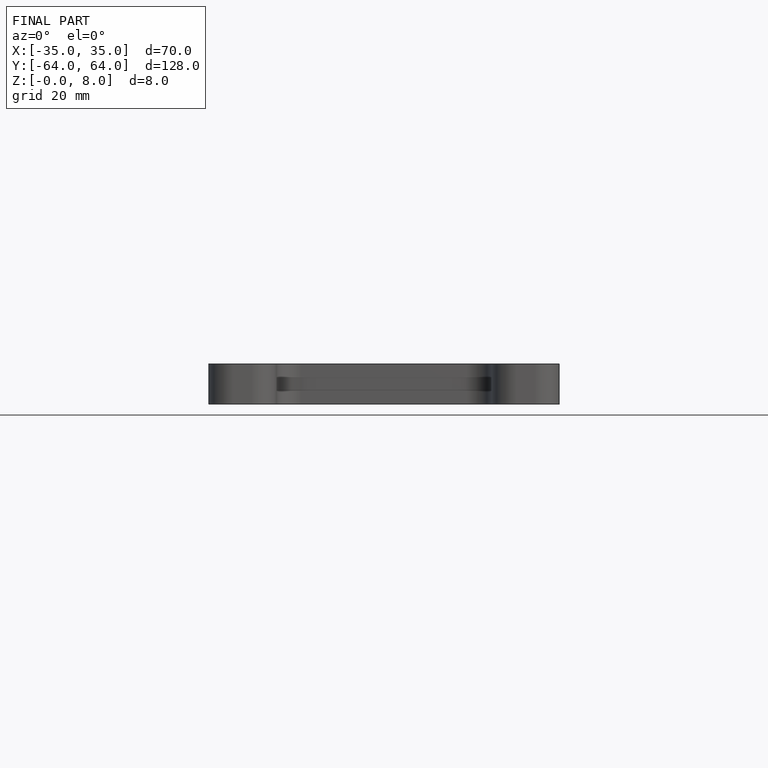
[diagram: finished part — front view with bounding-box wireframe]
